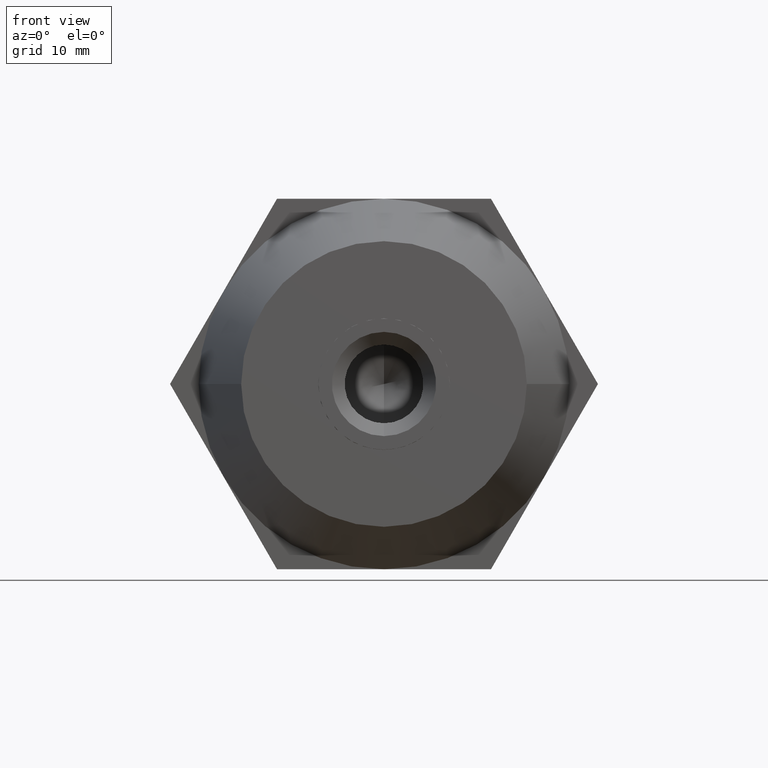
[diagram: clean part render]
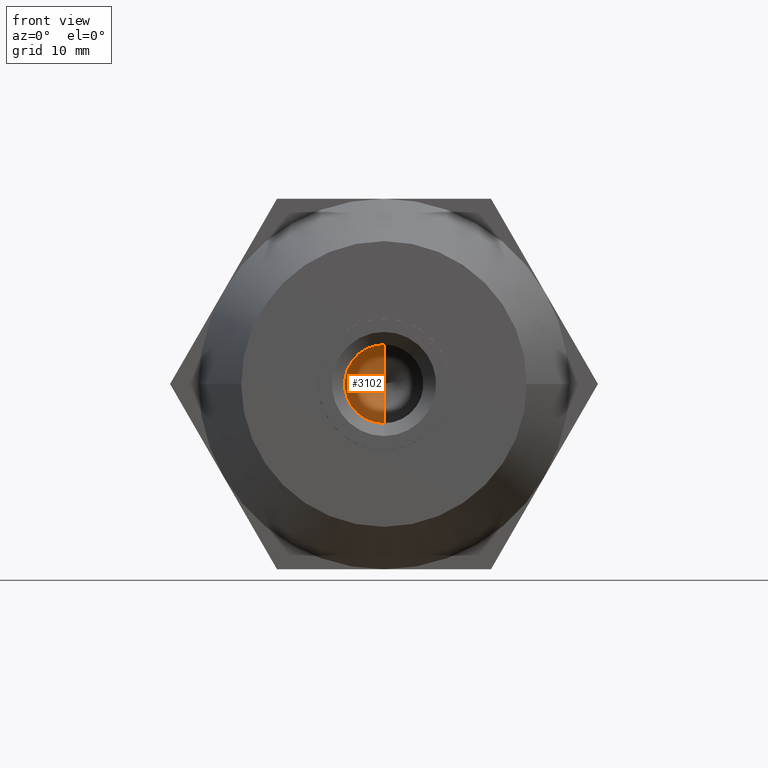
[diagram: same view with one face highlighted and labeled with its STEP entity id]
A machine part, front view. The second image highlights one B-rep face of the part: STEP entity #3102.
In plain terms, the highlighted conical surface has half-angle 59 deg.
Its self-contained STEP definition (entity closure, byte-faithful):
#242 = EDGE_CURVE ( 'NONE', #1086, #2435, #2945, .T. ) ;
#701 = EDGE_LOOP ( 'NONE', ( #1447, #3386, #1477 ) ) ;
#806 = CONICAL_SURFACE ( 'NONE', #2726, 5.100000000000000500, 1.029744258676653600 ) ;
#808 = CARTESIAN_POINT ( 'NONE',  ( 6.245698675651501800E-016, 4.060000000000000500, -5.100000000000000500 ) ) ;
#820 = CARTESIAN_POINT ( 'NONE',  ( 0.0000000000000000000, 4.060000000000000500, 5.100000000000000500 ) ) ;
#841 = DIRECTION ( 'NONE',  ( 0.0000000000000000000, 0.0000000000000000000, 1.000000000000000000 ) ) ;
#948 = VECTOR ( 'NONE', #3136, 999.9999999999998900 ) ;
#1086 = VERTEX_POINT ( 'NONE', #3661 ) ;
#1150 = AXIS2_PLACEMENT_3D ( 'NONE', #3700, #2461, #1561 ) ;
#1169 = EDGE_CURVE ( 'NONE', #1548, #2435, #2612, .T. ) ;
#1227 = LINE ( 'NONE', #2545, #948 ) ;
#1401 = EDGE_CURVE ( 'NONE', #1086, #1548, #1227, .T. ) ;
#1411 = FACE_OUTER_BOUND ( 'NONE', #701, .T. ) ;
#1447 = ORIENTED_EDGE ( 'NONE', *, *, #242, .F. ) ;
#1477 = ORIENTED_EDGE ( 'NONE', *, *, #1169, .T. ) ;
#1548 = VERTEX_POINT ( 'NONE', #820 ) ;
#1561 = DIRECTION ( 'NONE',  ( 0.0000000000000000000, 0.0000000000000000000, 1.000000000000000000 ) ) ;
#1730 = CARTESIAN_POINT ( 'NONE',  ( 0.0000000000000000000, 4.060000000000000500, 0.0000000000000000000 ) ) ;
#2128 = VECTOR ( 'NONE', #2629, 999.9999999999998900 ) ;
#2435 = VERTEX_POINT ( 'NONE', #808 ) ;
#2461 = DIRECTION ( 'NONE',  ( 0.0000000000000000000, 1.000000000000000000, 0.0000000000000000000 ) ) ;
#2545 = CARTESIAN_POINT ( 'NONE',  ( 0.0000000000000000000, 4.060000000000000500, 5.100000000000000500 ) ) ;
#2612 = CIRCLE ( 'NONE', #1150, 5.100000000000000500 ) ;
#2629 = DIRECTION ( 'NONE',  ( 1.049727191138618200E-016, 0.5150380749100549300, -0.8571673007021118900 ) ) ;
#2726 = AXIS2_PLACEMENT_3D ( 'NONE', #1730, #2947, #841 ) ;
#2945 = LINE ( 'NONE', #2979, #2128 ) ;
#2947 = DIRECTION ( 'NONE',  ( 0.0000000000000000000, 1.000000000000000000, 0.0000000000000000000 ) ) ;
#2979 = CARTESIAN_POINT ( 'NONE',  ( 6.245698675651501800E-016, 4.060000000000000500, -5.100000000000000500 ) ) ;
#3102 = ADVANCED_FACE ( 'NONE', ( #1411 ), #806, .F. ) ;
#3136 = DIRECTION ( 'NONE',  ( 0.0000000000000000000, 0.5150380749100549300, 0.8571673007021118900 ) ) ;
#3386 = ORIENTED_EDGE ( 'NONE', *, *, #1401, .T. ) ;
#3661 = CARTESIAN_POINT ( 'NONE',  ( -4.409803510354605000E-015, 0.9956108429594389100, 0.0000000000000000000 ) ) ;
#3700 = CARTESIAN_POINT ( 'NONE',  ( 0.0000000000000000000, 4.060000000000000500, 0.0000000000000000000 ) ) ;